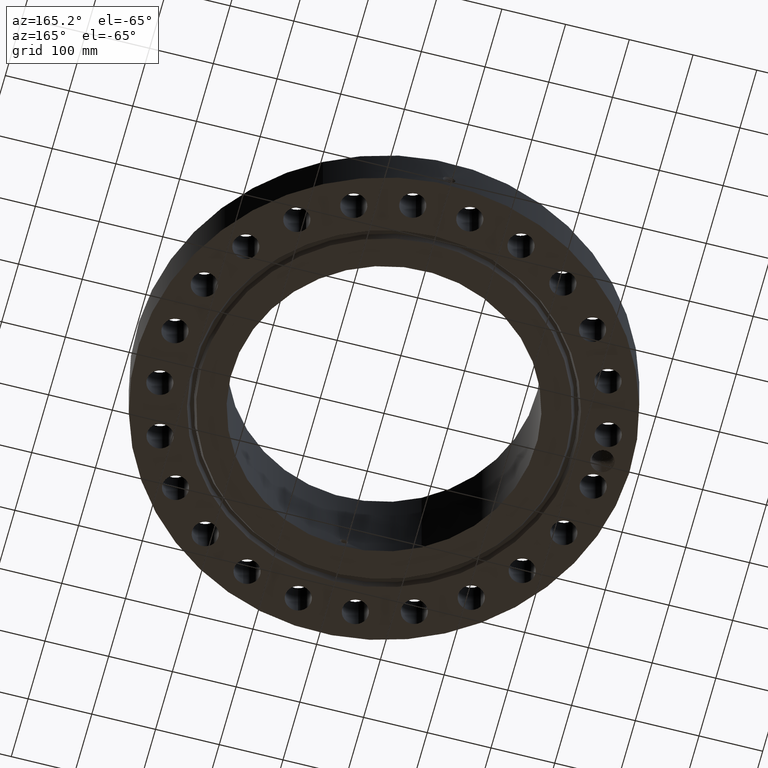
[diagram: clean part render]
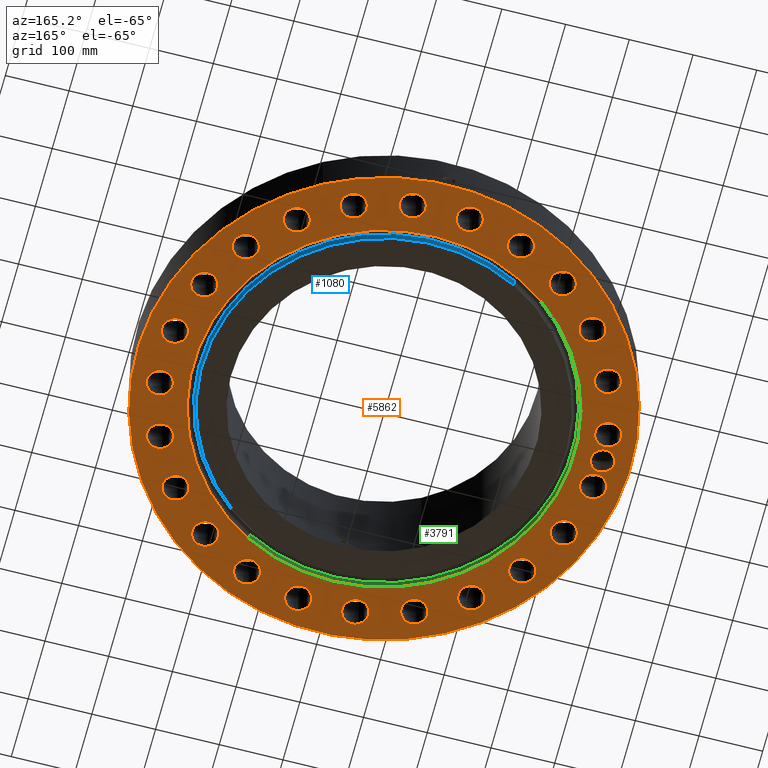
[diagram: same view with three faces highlighted in distinct colors, each labeled with its STEP entity id]
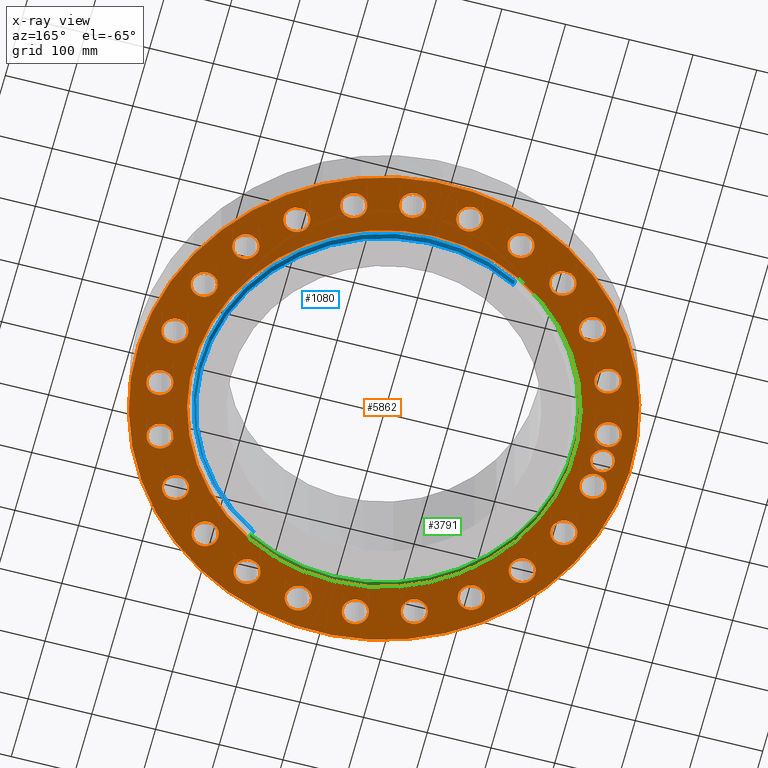
[diagram: x-ray of the same camera — body ghosted, the three highlighted faces saturated]
A machine part, auxiliary view with three faces highlighted in distinct colors.
The next image is the same camera in x-ray (body ghosted, the three faces saturated) — at least one of them is partly hidden behind the body in this view.
Their STEP definitions:

[orange] entity #5862 — the highlighted planar face has unit normal (0, 0, -1).
#598=AXIS2_PLACEMENT_3D('Plane Axis2P3D',#595,#596,#597) ;
#3756=AXIS2_PLACEMENT_3D('Circle Axis2P3D',#3754,#3755,$) ;
#3782=AXIS2_PLACEMENT_3D('Circle Axis2P3D',#3780,#3781,$) ;
#4056=AXIS2_PLACEMENT_3D('Circle Axis2P3D',#4054,#4055,$) ;
#4169=AXIS2_PLACEMENT_3D('Circle Axis2P3D',#4167,#4168,$) ;
#4391=AXIS2_PLACEMENT_3D('Circle Axis2P3D',#4389,#4390,$) ;
#4410=AXIS2_PLACEMENT_3D('Circle Axis2P3D',#4408,#4409,$) ;
#4434=AXIS2_PLACEMENT_3D('Circle Axis2P3D',#4432,#4433,$) ;
#4453=AXIS2_PLACEMENT_3D('Circle Axis2P3D',#4451,#4452,$) ;
#4477=AXIS2_PLACEMENT_3D('Circle Axis2P3D',#4475,#4476,$) ;
#4496=AXIS2_PLACEMENT_3D('Circle Axis2P3D',#4494,#4495,$) ;
#4520=AXIS2_PLACEMENT_3D('Circle Axis2P3D',#4518,#4519,$) ;
#4539=AXIS2_PLACEMENT_3D('Circle Axis2P3D',#4537,#4538,$) ;
#4563=AXIS2_PLACEMENT_3D('Circle Axis2P3D',#4561,#4562,$) ;
#4582=AXIS2_PLACEMENT_3D('Circle Axis2P3D',#4580,#4581,$) ;
#4606=AXIS2_PLACEMENT_3D('Circle Axis2P3D',#4604,#4605,$) ;
#4625=AXIS2_PLACEMENT_3D('Circle Axis2P3D',#4623,#4624,$) ;
#4649=AXIS2_PLACEMENT_3D('Circle Axis2P3D',#4647,#4648,$) ;
#4668=AXIS2_PLACEMENT_3D('Circle Axis2P3D',#4666,#4667,$) ;
#4692=AXIS2_PLACEMENT_3D('Circle Axis2P3D',#4690,#4691,$) ;
#4711=AXIS2_PLACEMENT_3D('Circle Axis2P3D',#4709,#4710,$) ;
#4735=AXIS2_PLACEMENT_3D('Circle Axis2P3D',#4733,#4734,$) ;
#4754=AXIS2_PLACEMENT_3D('Circle Axis2P3D',#4752,#4753,$) ;
#4778=AXIS2_PLACEMENT_3D('Circle Axis2P3D',#4776,#4777,$) ;
#4797=AXIS2_PLACEMENT_3D('Circle Axis2P3D',#4795,#4796,$) ;
#4821=AXIS2_PLACEMENT_3D('Circle Axis2P3D',#4819,#4820,$) ;
#4840=AXIS2_PLACEMENT_3D('Circle Axis2P3D',#4838,#4839,$) ;
#4864=AXIS2_PLACEMENT_3D('Circle Axis2P3D',#4862,#4863,$) ;
#4883=AXIS2_PLACEMENT_3D('Circle Axis2P3D',#4881,#4882,$) ;
#4907=AXIS2_PLACEMENT_3D('Circle Axis2P3D',#4905,#4906,$) ;
#4926=AXIS2_PLACEMENT_3D('Circle Axis2P3D',#4924,#4925,$) ;
#4950=AXIS2_PLACEMENT_3D('Circle Axis2P3D',#4948,#4949,$) ;
#4969=AXIS2_PLACEMENT_3D('Circle Axis2P3D',#4967,#4968,$) ;
#4993=AXIS2_PLACEMENT_3D('Circle Axis2P3D',#4991,#4992,$) ;
#5012=AXIS2_PLACEMENT_3D('Circle Axis2P3D',#5010,#5011,$) ;
#5036=AXIS2_PLACEMENT_3D('Circle Axis2P3D',#5034,#5035,$) ;
#5055=AXIS2_PLACEMENT_3D('Circle Axis2P3D',#5053,#5054,$) ;
#5079=AXIS2_PLACEMENT_3D('Circle Axis2P3D',#5077,#5078,$) ;
#5098=AXIS2_PLACEMENT_3D('Circle Axis2P3D',#5096,#5097,$) ;
#5122=AXIS2_PLACEMENT_3D('Circle Axis2P3D',#5120,#5121,$) ;
#5141=AXIS2_PLACEMENT_3D('Circle Axis2P3D',#5139,#5140,$) ;
#5165=AXIS2_PLACEMENT_3D('Circle Axis2P3D',#5163,#5164,$) ;
#5184=AXIS2_PLACEMENT_3D('Circle Axis2P3D',#5182,#5183,$) ;
#5208=AXIS2_PLACEMENT_3D('Circle Axis2P3D',#5206,#5207,$) ;
#5227=AXIS2_PLACEMENT_3D('Circle Axis2P3D',#5225,#5226,$) ;
#5251=AXIS2_PLACEMENT_3D('Circle Axis2P3D',#5249,#5250,$) ;
#5270=AXIS2_PLACEMENT_3D('Circle Axis2P3D',#5268,#5269,$) ;
#5294=AXIS2_PLACEMENT_3D('Circle Axis2P3D',#5292,#5293,$) ;
#5313=AXIS2_PLACEMENT_3D('Circle Axis2P3D',#5311,#5312,$) ;
#5337=AXIS2_PLACEMENT_3D('Circle Axis2P3D',#5335,#5336,$) ;
#5356=AXIS2_PLACEMENT_3D('Circle Axis2P3D',#5354,#5355,$) ;
#5380=AXIS2_PLACEMENT_3D('Circle Axis2P3D',#5378,#5379,$) ;
#5399=AXIS2_PLACEMENT_3D('Circle Axis2P3D',#5397,#5398,$) ;
#5710=AXIS2_PLACEMENT_3D('Circle Axis2P3D',#5708,#5709,$) ;
#5719=AXIS2_PLACEMENT_3D('Circle Axis2P3D',#5717,#5718,$) ;
#5726=AXIS2_PLACEMENT_3D('Circle Axis2P3D',#5724,#5725,$) ;
#595=CARTESIAN_POINT('Axis2P3D Location',(0.,9.40600000004,0.)) ;
#3754=CARTESIAN_POINT('Axis2P3D Location',(0.,0.,0.)) ;
#3758=CARTESIAN_POINT('Vertex',(-5.64068117447,10.325197632,0.)) ;
#3760=CARTESIAN_POINT('Vertex',(5.64068117447,-10.325197632,-1.95818864186E-015)) ;
#3780=CARTESIAN_POINT('Axis2P3D Location',(0.,0.,0.)) ;
#4054=CARTESIAN_POINT('Axis2P3D Location',(0.,0.,1.67844740731E-015)) ;
#4058=CARTESIAN_POINT('Vertex',(-7.31123946374,-13.3831340689,1.67844740731E-015)) ;
#4060=CARTESIAN_POINT('Vertex',(7.31123946374,13.3831340689,1.67844740731E-015)) ;
#4167=CARTESIAN_POINT('Axis2P3D Location',(0.,0.,1.67844740731E-015)) ;
#4386=CARTESIAN_POINT('Vertex',(14.0953475037,-2.15043828125,0.)) ;
#4389=CARTESIAN_POINT('Axis2P3D Location',(13.3845056286,-1.76210359498,0.)) ;
#4393=CARTESIAN_POINT('Vertex',(12.6736637535,-1.37376890871,0.)) ;
#4408=CARTESIAN_POINT('Axis2P3D Location',(13.3845056286,-1.76210359498,0.)) ;
#4429=CARTESIAN_POINT('Vertex',(11.886261576,-4.6071444189,0.)) ;
#4432=CARTESIAN_POINT('Axis2P3D Location',(12.472373689,-5.16622633695,0.)) ;
#4436=CARTESIAN_POINT('Vertex',(13.0584858019,-5.725308255,0.)) ;
#4451=CARTESIAN_POINT('Axis2P3D Location',(12.472373689,-5.16622633695,0.)) ;
#4472=CARTESIAN_POINT('Vertex',(10.2888303152,-7.5265506506,0.)) ;
#4475=CARTESIAN_POINT('Axis2P3D Location',(10.710270094,-8.21827929165,0.)) ;
#4479=CARTESIAN_POINT('Vertex',(11.1317098728,-8.9100079327,0.)) ;
#4494=CARTESIAN_POINT('Axis2P3D Location',(10.710270094,-8.21827929165,0.)) ;
#4515=CARTESIAN_POINT('Vertex',(7.99023227142,-9.93303489368,0.)) ;
#4518=CARTESIAN_POINT('Axis2P3D Location',(8.21827929165,-10.710270094,0.)) ;
#4522=CARTESIAN_POINT('Vertex',(8.44632631188,-11.4875052943,0.)) ;
#4537=CARTESIAN_POINT('Axis2P3D Location',(8.21827929165,-10.710270094,0.)) ;
#4558=CARTESIAN_POINT('Vertex',(5.14711310286,-11.6625992239,0.)) ;
#4561=CARTESIAN_POINT('Axis2P3D Location',(5.16622633695,-12.472373689,0.)) ;
#4565=CARTESIAN_POINT('Vertex',(5.18533957104,-13.282148154,0.)) ;
#4580=CARTESIAN_POINT('Axis2P3D Location',(5.16622633695,-12.472373689,0.)) ;
#4601=CARTESIAN_POINT('Vertex',(1.95322668235,-12.5973766903,0.)) ;
#4604=CARTESIAN_POINT('Axis2P3D Location',(1.76210359498,-13.3845056286,0.)) ;
#4608=CARTESIAN_POINT('Vertex',(1.57098050761,-14.1716345669,0.)) ;
#4623=CARTESIAN_POINT('Axis2P3D Location',(1.76210359498,-13.3845056286,0.)) ;
#4644=CARTESIAN_POINT('Vertex',(-1.37376890871,-12.6736637535,0.)) ;
#4647=CARTESIAN_POINT('Axis2P3D Location',(-1.76210359498,-13.3845056286,0.)) ;
#4651=CARTESIAN_POINT('Vertex',(-2.15043828125,-14.0953475037,0.)) ;
#4666=CARTESIAN_POINT('Axis2P3D Location',(-1.76210359498,-13.3845056286,0.)) ;
#4687=CARTESIAN_POINT('Vertex',(-4.6071444189,-11.886261576,0.)) ;
#4690=CARTESIAN_POINT('Axis2P3D Location',(-5.16622633695,-12.472373689,-1.1189649382E-015)) ;
#4694=CARTESIAN_POINT('Vertex',(-5.725308255,-13.0584858019,-1.1189649382E-015)) ;
#4709=CARTESIAN_POINT('Axis2P3D Location',(-5.16622633695,-12.472373689,-1.1189649382E-015)) ;
#4730=CARTESIAN_POINT('Vertex',(-7.5265506506,-10.2888303152,0.)) ;
#4733=CARTESIAN_POINT('Axis2P3D Location',(-8.21827929165,-10.710270094,-2.23792987641E-015)) ;
#4737=CARTESIAN_POINT('Vertex',(-8.9100079327,-11.1317098728,-2.23792987641E-015)) ;
#4752=CARTESIAN_POINT('Axis2P3D Location',(-8.21827929165,-10.710270094,-2.23792987641E-015)) ;
#4773=CARTESIAN_POINT('Vertex',(-9.93303489368,-7.99023227142,0.)) ;
#4776=CARTESIAN_POINT('Axis2P3D Location',(-10.710270094,-8.21827929165,0.)) ;
#4780=CARTESIAN_POINT('Vertex',(-11.4875052943,-8.44632631188,0.)) ;
#4795=CARTESIAN_POINT('Axis2P3D Location',(-10.710270094,-8.21827929165,0.)) ;
#4816=CARTESIAN_POINT('Vertex',(-11.6625992239,-5.14711310286,0.)) ;
#4819=CARTESIAN_POINT('Axis2P3D Location',(-12.472373689,-5.16622633695,0.)) ;
#4823=CARTESIAN_POINT('Vertex',(-13.282148154,-5.18533957104,0.)) ;
#4838=CARTESIAN_POINT('Axis2P3D Location',(-12.472373689,-5.16622633695,0.)) ;
#4859=CARTESIAN_POINT('Vertex',(-12.5973766903,-1.95322668235,0.)) ;
#4862=CARTESIAN_POINT('Axis2P3D Location',(-13.3845056286,-1.76210359498,0.)) ;
#4866=CARTESIAN_POINT('Vertex',(-14.1716345669,-1.57098050761,0.)) ;
#4881=CARTESIAN_POINT('Axis2P3D Location',(-13.3845056286,-1.76210359498,0.)) ;
#4902=CARTESIAN_POINT('Vertex',(-12.6736637535,1.37376890871,0.)) ;
#4905=CARTESIAN_POINT('Axis2P3D Location',(-13.3845056286,1.76210359498,0.)) ;
#4909=CARTESIAN_POINT('Vertex',(-14.0953475037,2.15043828125,0.)) ;
#4924=CARTESIAN_POINT('Axis2P3D Location',(-13.3845056286,1.76210359498,0.)) ;
#4945=CARTESIAN_POINT('Vertex',(-11.886261576,4.6071444189,0.)) ;
#4948=CARTESIAN_POINT('Axis2P3D Location',(-12.472373689,5.16622633695,0.)) ;
#4952=CARTESIAN_POINT('Vertex',(-13.0584858019,5.725308255,0.)) ;
#4967=CARTESIAN_POINT('Axis2P3D Location',(-12.472373689,5.16622633695,0.)) ;
#4988=CARTESIAN_POINT('Vertex',(-10.2888303152,7.5265506506,0.)) ;
#4991=CARTESIAN_POINT('Axis2P3D Location',(-10.710270094,8.21827929165,0.)) ;
#4995=CARTESIAN_POINT('Vertex',(-11.1317098728,8.9100079327,0.)) ;
#5010=CARTESIAN_POINT('Axis2P3D Location',(-10.710270094,8.21827929165,0.)) ;
#5031=CARTESIAN_POINT('Vertex',(-7.99023227142,9.93303489368,0.)) ;
#5034=CARTESIAN_POINT('Axis2P3D Location',(-8.21827929165,10.710270094,0.)) ;
#5038=CARTESIAN_POINT('Vertex',(-8.44632631188,11.4875052943,0.)) ;
#5053=CARTESIAN_POINT('Axis2P3D Location',(-8.21827929165,10.710270094,0.)) ;
#5074=CARTESIAN_POINT('Vertex',(-5.14711310286,11.6625992239,0.)) ;
#5077=CARTESIAN_POINT('Axis2P3D Location',(-5.16622633695,12.472373689,0.)) ;
#5081=CARTESIAN_POINT('Vertex',(-5.18533957104,13.282148154,0.)) ;
#5096=CARTESIAN_POINT('Axis2P3D Location',(-5.16622633695,12.472373689,0.)) ;
#5117=CARTESIAN_POINT('Vertex',(-1.95322668235,12.5973766903,0.)) ;
#5120=CARTESIAN_POINT('Axis2P3D Location',(-1.76210359498,13.3845056286,0.)) ;
#5124=CARTESIAN_POINT('Vertex',(-1.57098050761,14.1716345669,0.)) ;
#5139=CARTESIAN_POINT('Axis2P3D Location',(-1.76210359498,13.3845056286,0.)) ;
#5160=CARTESIAN_POINT('Vertex',(1.37376890871,12.6736637535,0.)) ;
#5163=CARTESIAN_POINT('Axis2P3D Location',(1.76210359498,13.3845056286,0.)) ;
#5167=CARTESIAN_POINT('Vertex',(2.15043828125,14.0953475037,0.)) ;
#5182=CARTESIAN_POINT('Axis2P3D Location',(1.76210359498,13.3845056286,0.)) ;
#5203=CARTESIAN_POINT('Vertex',(4.6071444189,11.886261576,0.)) ;
#5206=CARTESIAN_POINT('Axis2P3D Location',(5.16622633695,12.472373689,0.)) ;
#5210=CARTESIAN_POINT('Vertex',(5.725308255,13.0584858019,0.)) ;
#5225=CARTESIAN_POINT('Axis2P3D Location',(5.16622633695,12.472373689,0.)) ;
#5246=CARTESIAN_POINT('Vertex',(7.5265506506,10.2888303152,0.)) ;
#5249=CARTESIAN_POINT('Axis2P3D Location',(8.21827929165,10.710270094,0.)) ;
#5253=CARTESIAN_POINT('Vertex',(8.9100079327,11.1317098728,0.)) ;
#5268=CARTESIAN_POINT('Axis2P3D Location',(8.21827929165,10.710270094,0.)) ;
#5289=CARTESIAN_POINT('Vertex',(9.93303489368,7.99023227142,0.)) ;
#5292=CARTESIAN_POINT('Axis2P3D Location',(10.710270094,8.21827929165,0.)) ;
#5296=CARTESIAN_POINT('Vertex',(11.4875052943,8.44632631188,0.)) ;
#5311=CARTESIAN_POINT('Axis2P3D Location',(10.710270094,8.21827929165,0.)) ;
#5332=CARTESIAN_POINT('Vertex',(11.6625992239,5.14711310286,0.)) ;
#5335=CARTESIAN_POINT('Axis2P3D Location',(12.472373689,5.16622633695,0.)) ;
#5339=CARTESIAN_POINT('Vertex',(13.282148154,5.18533957104,0.)) ;
#5354=CARTESIAN_POINT('Axis2P3D Location',(12.472373689,5.16622633695,0.)) ;
#5375=CARTESIAN_POINT('Vertex',(12.5973766903,1.95322668235,0.)) ;
#5378=CARTESIAN_POINT('Axis2P3D Location',(13.3845056286,1.76210359498,0.)) ;
#5382=CARTESIAN_POINT('Vertex',(14.1716345669,1.57098050761,0.)) ;
#5397=CARTESIAN_POINT('Axis2P3D Location',(13.3845056286,1.76210359498,0.)) ;
#5708=CARTESIAN_POINT('Axis2P3D Location',(-13.5000000001,-5.59482469102E-015,0.)) ;
#5712=CARTESIAN_POINT('Vertex',(-14.1423026771,0.350891551706,0.)) ;
#5714=CARTESIAN_POINT('Vertex',(-13.9946919209,0.539404777018,0.)) ;
#5717=CARTESIAN_POINT('Axis2P3D Location',(-13.5000000001,-5.59482469102E-015,0.)) ;
#5721=CARTESIAN_POINT('Vertex',(-12.857697323,-0.350891551706,0.)) ;
#5724=CARTESIAN_POINT('Axis2P3D Location',(-13.5000000001,-5.59482469102E-015,0.)) ;
#5728=CARTESIAN_POINT('Vertex',(-13.0313287575,0.562160899066,0.)) ;
#5732=CARTESIAN_POINT('Control Point',(-13.5176305827,0.749805742301,0.)) ;
#5733=CARTESIAN_POINT('Control Point',(-13.4614873509,0.749237272822,0.)) ;
#5734=CARTESIAN_POINT('Control Point',(-13.4054600923,0.74341097386,0.)) ;
#5735=CARTESIAN_POINT('Control Point',(-13.3502031906,0.732335780361,0.)) ;
#5736=CARTESIAN_POINT('Control Point',(-13.2475757315,0.70147020082,0.)) ;
#5737=CARTESIAN_POINT('Control Point',(-13.1524552652,0.652965206504,0.)) ;
#5738=CARTESIAN_POINT('Control Point',(-13.1093767781,0.626103065864,0.)) ;
#5739=CARTESIAN_POINT('Control Point',(-13.0688797901,0.595722298228,0.)) ;
#5740=CARTESIAN_POINT('Control Point',(-13.0313287575,0.562160899066,0.)) ;
#5741=CARTESIAN_POINT('Vertex',(-13.5176305827,0.749805742301,-8.74191357973E-018)) ;
#5745=CARTESIAN_POINT('Control Point',(-13.5176305827,0.749805742301,0.)) ;
#5746=CARTESIAN_POINT('Control Point',(-13.5849434874,0.745961655341,0.)) ;
#5747=CARTESIAN_POINT('Control Point',(-13.6516740814,0.734555348833,0.)) ;
#5748=CARTESIAN_POINT('Control Point',(-13.7166930271,0.715676879873,0.)) ;
#5749=CARTESIAN_POINT('Control Point',(-13.8156574662,0.674316121079,0.)) ;
#5750=CARTESIAN_POINT('Control Point',(-13.9050065691,0.616387327484,0.)) ;
#5751=CARTESIAN_POINT('Control Point',(-13.9366738896,0.59269526392,0.)) ;
#5752=CARTESIAN_POINT('Control Point',(-13.9666245253,0.566978722431,0.)) ;
#5753=CARTESIAN_POINT('Control Point',(-13.9946919209,0.539404777018,0.)) ;
#596=DIRECTION('Axis2P3D Direction',(0.,0.,-0.0393700787402)) ;
#597=DIRECTION('Axis2P3D XDirection',(0.0393700787402,0.,0.)) ;
#3755=DIRECTION('Axis2P3D Direction',(0.,0.,-0.0393700787402)) ;
#3781=DIRECTION('Axis2P3D Direction',(0.,0.,-0.0393700787402)) ;
#4055=DIRECTION('Axis2P3D Direction',(0.,0.,-0.0393700787402)) ;
#4168=DIRECTION('Axis2P3D Direction',(0.,0.,-0.0393700787402)) ;
#4390=DIRECTION('Axis2P3D Direction',(0.,-0.,-0.0393700787402)) ;
#4409=DIRECTION('Axis2P3D Direction',(0.,-0.,-0.0393700787402)) ;
#4433=DIRECTION('Axis2P3D Direction',(0.,-0.,-0.0393700787402)) ;
#4452=DIRECTION('Axis2P3D Direction',(0.,-0.,-0.0393700787402)) ;
#4476=DIRECTION('Axis2P3D Direction',(0.,-0.,-0.0393700787402)) ;
#4495=DIRECTION('Axis2P3D Direction',(0.,-0.,-0.0393700787402)) ;
#4519=DIRECTION('Axis2P3D Direction',(0.,-0.,-0.0393700787402)) ;
#4538=DIRECTION('Axis2P3D Direction',(0.,-0.,-0.0393700787402)) ;
#4562=DIRECTION('Axis2P3D Direction',(0.,-0.,-0.0393700787402)) ;
#4581=DIRECTION('Axis2P3D Direction',(0.,-0.,-0.0393700787402)) ;
#4605=DIRECTION('Axis2P3D Direction',(0.,-0.,-0.0393700787402)) ;
#4624=DIRECTION('Axis2P3D Direction',(0.,-0.,-0.0393700787402)) ;
#4648=DIRECTION('Axis2P3D Direction',(0.,-0.,-0.0393700787402)) ;
#4667=DIRECTION('Axis2P3D Direction',(0.,-0.,-0.0393700787402)) ;
#4691=DIRECTION('Axis2P3D Direction',(-0.,0.,-0.0393700787402)) ;
#4710=DIRECTION('Axis2P3D Direction',(-0.,0.,-0.0393700787402)) ;
#4734=DIRECTION('Axis2P3D Direction',(-0.,0.,-0.0393700787402)) ;
#4753=DIRECTION('Axis2P3D Direction',(-0.,0.,-0.0393700787402)) ;
#4777=DIRECTION('Axis2P3D Direction',(-0.,0.,-0.0393700787402)) ;
#4796=DIRECTION('Axis2P3D Direction',(-0.,0.,-0.0393700787402)) ;
#4820=DIRECTION('Axis2P3D Direction',(-0.,0.,-0.0393700787402)) ;
#4839=DIRECTION('Axis2P3D Direction',(-0.,0.,-0.0393700787402)) ;
#4863=DIRECTION('Axis2P3D Direction',(-0.,0.,-0.0393700787402)) ;
#4882=DIRECTION('Axis2P3D Direction',(-0.,0.,-0.0393700787402)) ;
#4906=DIRECTION('Axis2P3D Direction',(-0.,0.,-0.0393700787402)) ;
#4925=DIRECTION('Axis2P3D Direction',(-0.,0.,-0.0393700787402)) ;
#4949=DIRECTION('Axis2P3D Direction',(0.,0.,-0.0393700787402)) ;
#4968=DIRECTION('Axis2P3D Direction',(0.,0.,-0.0393700787402)) ;
#4992=DIRECTION('Axis2P3D Direction',(0.,0.,-0.0393700787402)) ;
#5011=DIRECTION('Axis2P3D Direction',(0.,0.,-0.0393700787402)) ;
#5035=DIRECTION('Axis2P3D Direction',(0.,0.,-0.0393700787402)) ;
#5054=DIRECTION('Axis2P3D Direction',(0.,0.,-0.0393700787402)) ;
#5078=DIRECTION('Axis2P3D Direction',(0.,0.,-0.0393700787402)) ;
#5097=DIRECTION('Axis2P3D Direction',(0.,0.,-0.0393700787402)) ;
#5121=DIRECTION('Axis2P3D Direction',(0.,0.,-0.0393700787402)) ;
#5140=DIRECTION('Axis2P3D Direction',(0.,0.,-0.0393700787402)) ;
#5164=DIRECTION('Axis2P3D Direction',(0.,0.,-0.0393700787402)) ;
#5183=DIRECTION('Axis2P3D Direction',(0.,0.,-0.0393700787402)) ;
#5207=DIRECTION('Axis2P3D Direction',(0.,0.,-0.0393700787402)) ;
#5226=DIRECTION('Axis2P3D Direction',(0.,0.,-0.0393700787402)) ;
#5250=DIRECTION('Axis2P3D Direction',(0.,0.,-0.0393700787402)) ;
#5269=DIRECTION('Axis2P3D Direction',(0.,0.,-0.0393700787402)) ;
#5293=DIRECTION('Axis2P3D Direction',(0.,0.,-0.0393700787402)) ;
#5312=DIRECTION('Axis2P3D Direction',(0.,0.,-0.0393700787402)) ;
#5336=DIRECTION('Axis2P3D Direction',(0.,0.,-0.0393700787402)) ;
#5355=DIRECTION('Axis2P3D Direction',(0.,0.,-0.0393700787402)) ;
#5379=DIRECTION('Axis2P3D Direction',(0.,0.,-0.0393700787402)) ;
#5398=DIRECTION('Axis2P3D Direction',(0.,0.,-0.0393700787402)) ;
#5709=DIRECTION('Axis2P3D Direction',(0.,0.,-0.0393700787402)) ;
#5718=DIRECTION('Axis2P3D Direction',(0.,0.,-0.0393700787402)) ;
#5725=DIRECTION('Axis2P3D Direction',(0.,0.,-0.0393700787402)) ;
#5705=ORIENTED_EDGE('',*,*,#4062,.T.) ;
#5706=ORIENTED_EDGE('',*,*,#4171,.T.) ;
#5756=ORIENTED_EDGE('',*,*,#5716,.F.) ;
#5757=ORIENTED_EDGE('',*,*,#5723,.F.) ;
#5758=ORIENTED_EDGE('',*,*,#5730,.F.) ;
#5759=ORIENTED_EDGE('',*,*,#5743,.F.) ;
#5760=ORIENTED_EDGE('',*,*,#5754,.T.) ;
#5763=ORIENTED_EDGE('',*,*,#4395,.F.) ;
#5764=ORIENTED_EDGE('',*,*,#4412,.F.) ;
#5767=ORIENTED_EDGE('',*,*,#4438,.F.) ;
#5768=ORIENTED_EDGE('',*,*,#4455,.F.) ;
#5771=ORIENTED_EDGE('',*,*,#4481,.F.) ;
#5772=ORIENTED_EDGE('',*,*,#4498,.F.) ;
#5775=ORIENTED_EDGE('',*,*,#4524,.F.) ;
#5776=ORIENTED_EDGE('',*,*,#4541,.F.) ;
#5779=ORIENTED_EDGE('',*,*,#4567,.F.) ;
#5780=ORIENTED_EDGE('',*,*,#4584,.F.) ;
#5783=ORIENTED_EDGE('',*,*,#4610,.F.) ;
#5784=ORIENTED_EDGE('',*,*,#4627,.F.) ;
#5787=ORIENTED_EDGE('',*,*,#4653,.F.) ;
#5788=ORIENTED_EDGE('',*,*,#4670,.F.) ;
#5791=ORIENTED_EDGE('',*,*,#4696,.F.) ;
#5792=ORIENTED_EDGE('',*,*,#4713,.F.) ;
#5795=ORIENTED_EDGE('',*,*,#4739,.F.) ;
#5796=ORIENTED_EDGE('',*,*,#4756,.F.) ;
#5799=ORIENTED_EDGE('',*,*,#4782,.F.) ;
#5800=ORIENTED_EDGE('',*,*,#4799,.F.) ;
#5803=ORIENTED_EDGE('',*,*,#4825,.F.) ;
#5804=ORIENTED_EDGE('',*,*,#4842,.F.) ;
#5807=ORIENTED_EDGE('',*,*,#4868,.F.) ;
#5808=ORIENTED_EDGE('',*,*,#4885,.F.) ;
#5811=ORIENTED_EDGE('',*,*,#4911,.F.) ;
#5812=ORIENTED_EDGE('',*,*,#4928,.F.) ;
#5815=ORIENTED_EDGE('',*,*,#4954,.F.) ;
#5816=ORIENTED_EDGE('',*,*,#4971,.F.) ;
#5819=ORIENTED_EDGE('',*,*,#4997,.F.) ;
#5820=ORIENTED_EDGE('',*,*,#5014,.F.) ;
#5823=ORIENTED_EDGE('',*,*,#5040,.F.) ;
#5824=ORIENTED_EDGE('',*,*,#5057,.F.) ;
#5827=ORIENTED_EDGE('',*,*,#5083,.F.) ;
#5828=ORIENTED_EDGE('',*,*,#5100,.F.) ;
#5831=ORIENTED_EDGE('',*,*,#5126,.F.) ;
#5832=ORIENTED_EDGE('',*,*,#5143,.F.) ;
#5835=ORIENTED_EDGE('',*,*,#5169,.F.) ;
#5836=ORIENTED_EDGE('',*,*,#5186,.F.) ;
#5839=ORIENTED_EDGE('',*,*,#5212,.F.) ;
#5840=ORIENTED_EDGE('',*,*,#5229,.F.) ;
#5843=ORIENTED_EDGE('',*,*,#5255,.F.) ;
#5844=ORIENTED_EDGE('',*,*,#5272,.F.) ;
#5847=ORIENTED_EDGE('',*,*,#5298,.F.) ;
#5848=ORIENTED_EDGE('',*,*,#5315,.F.) ;
#5851=ORIENTED_EDGE('',*,*,#5341,.F.) ;
#5852=ORIENTED_EDGE('',*,*,#5358,.F.) ;
#5855=ORIENTED_EDGE('',*,*,#5384,.F.) ;
#5856=ORIENTED_EDGE('',*,*,#5401,.F.) ;
#5859=ORIENTED_EDGE('',*,*,#3784,.F.) ;
#5860=ORIENTED_EDGE('',*,*,#3762,.F.) ;
#5761=FACE_BOUND('',#5755,.T.) ;
#5765=FACE_BOUND('',#5762,.T.) ;
#5769=FACE_BOUND('',#5766,.T.) ;
#5773=FACE_BOUND('',#5770,.T.) ;
#5777=FACE_BOUND('',#5774,.T.) ;
#5781=FACE_BOUND('',#5778,.T.) ;
#5785=FACE_BOUND('',#5782,.T.) ;
#5789=FACE_BOUND('',#5786,.T.) ;
#5793=FACE_BOUND('',#5790,.T.) ;
#5797=FACE_BOUND('',#5794,.T.) ;
#5801=FACE_BOUND('',#5798,.T.) ;
#5805=FACE_BOUND('',#5802,.T.) ;
#5809=FACE_BOUND('',#5806,.T.) ;
#5813=FACE_BOUND('',#5810,.T.) ;
#5817=FACE_BOUND('',#5814,.T.) ;
#5821=FACE_BOUND('',#5818,.T.) ;
#5825=FACE_BOUND('',#5822,.T.) ;
#5829=FACE_BOUND('',#5826,.T.) ;
#5833=FACE_BOUND('',#5830,.T.) ;
#5837=FACE_BOUND('',#5834,.T.) ;
#5841=FACE_BOUND('',#5838,.T.) ;
#5845=FACE_BOUND('',#5842,.T.) ;
#5849=FACE_BOUND('',#5846,.T.) ;
#5853=FACE_BOUND('',#5850,.T.) ;
#5857=FACE_BOUND('',#5854,.T.) ;
#5861=FACE_BOUND('',#5858,.T.) ;
#5862=ADVANCED_FACE('PartBody',(#5707,#5761,#5765,#5769,#5773,#5777,#5781,#5785,#5789,#5793,#5797,#5801,#5805,#5809,#5813,#5817,#5821,#5825,#5829,#5833,#5837,#5841,#5845,#5849,#5853,#5857,#5861),#599,.T.) ;
#5731=B_SPLINE_CURVE_WITH_KNOTS('',5,(#5732,#5733,#5734,#5735,#5736,#5737,#5738,#5739,#5740),.UNSPECIFIED.,.F.,.U.,(6,3,6),(0.,9.8403408392,18.763660013),.UNSPECIFIED.) ;
#5744=B_SPLINE_CURVE_WITH_KNOTS('',5,(#5745,#5746,#5747,#5748,#5749,#5750,#5751,#5752,#5753),.UNSPECIFIED.,.F.,.U.,(6,3,6),(0.,11.8167081259,18.8024030829),.UNSPECIFIED.) ;
#3757=CIRCLE('generated circle',#3756,11.7655) ;
#3783=CIRCLE('generated circle',#3782,11.7655) ;
#4057=CIRCLE('generated circle',#4056,15.2500000001) ;
#4170=CIRCLE('generated circle',#4169,15.2500000001) ;
#4392=CIRCLE('generated circle',#4391,0.810000000003) ;
#4411=CIRCLE('generated circle',#4410,0.810000000003) ;
#4435=CIRCLE('generated circle',#4434,0.810000000003) ;
#4454=CIRCLE('generated circle',#4453,0.810000000003) ;
#4478=CIRCLE('generated circle',#4477,0.810000000003) ;
#4497=CIRCLE('generated circle',#4496,0.810000000003) ;
#4521=CIRCLE('generated circle',#4520,0.810000000003) ;
#4540=CIRCLE('generated circle',#4539,0.810000000003) ;
#4564=CIRCLE('generated circle',#4563,0.810000000003) ;
#4583=CIRCLE('generated circle',#4582,0.810000000003) ;
#4607=CIRCLE('generated circle',#4606,0.810000000003) ;
#4626=CIRCLE('generated circle',#4625,0.810000000003) ;
#4650=CIRCLE('generated circle',#4649,0.810000000003) ;
#4669=CIRCLE('generated circle',#4668,0.810000000003) ;
#4693=CIRCLE('generated circle',#4692,0.810000000003) ;
#4712=CIRCLE('generated circle',#4711,0.810000000003) ;
#4736=CIRCLE('generated circle',#4735,0.810000000003) ;
#4755=CIRCLE('generated circle',#4754,0.810000000003) ;
#4779=CIRCLE('generated circle',#4778,0.810000000003) ;
#4798=CIRCLE('generated circle',#4797,0.810000000003) ;
#4822=CIRCLE('generated circle',#4821,0.810000000003) ;
#4841=CIRCLE('generated circle',#4840,0.810000000003) ;
#4865=CIRCLE('generated circle',#4864,0.810000000003) ;
#4884=CIRCLE('generated circle',#4883,0.810000000003) ;
#4908=CIRCLE('generated circle',#4907,0.810000000003) ;
#4927=CIRCLE('generated circle',#4926,0.810000000003) ;
#4951=CIRCLE('generated circle',#4950,0.810000000003) ;
#4970=CIRCLE('generated circle',#4969,0.810000000003) ;
#4994=CIRCLE('generated circle',#4993,0.810000000003) ;
#5013=CIRCLE('generated circle',#5012,0.810000000003) ;
#5037=CIRCLE('generated circle',#5036,0.810000000003) ;
#5056=CIRCLE('generated circle',#5055,0.810000000003) ;
#5080=CIRCLE('generated circle',#5079,0.810000000003) ;
#5099=CIRCLE('generated circle',#5098,0.810000000003) ;
#5123=CIRCLE('generated circle',#5122,0.810000000003) ;
#5142=CIRCLE('generated circle',#5141,0.810000000003) ;
#5166=CIRCLE('generated circle',#5165,0.810000000003) ;
#5185=CIRCLE('generated circle',#5184,0.810000000003) ;
#5209=CIRCLE('generated circle',#5208,0.810000000003) ;
#5228=CIRCLE('generated circle',#5227,0.810000000003) ;
#5252=CIRCLE('generated circle',#5251,0.810000000003) ;
#5271=CIRCLE('generated circle',#5270,0.810000000003) ;
#5295=CIRCLE('generated circle',#5294,0.810000000003) ;
#5314=CIRCLE('generated circle',#5313,0.810000000003) ;
#5338=CIRCLE('generated circle',#5337,0.810000000003) ;
#5357=CIRCLE('generated circle',#5356,0.810000000003) ;
#5381=CIRCLE('generated circle',#5380,0.810000000003) ;
#5400=CIRCLE('generated circle',#5399,0.810000000003) ;
#5711=CIRCLE('generated circle',#5710,0.731900000003) ;
#5720=CIRCLE('generated circle',#5719,0.731900000003) ;
#5727=CIRCLE('generated circle',#5726,0.731900000003) ;
#3762=EDGE_CURVE('',#3759,#3761,#3757,.T.) ;
#3784=EDGE_CURVE('',#3761,#3759,#3783,.T.) ;
#4062=EDGE_CURVE('',#4059,#4061,#4057,.T.) ;
#4171=EDGE_CURVE('',#4061,#4059,#4170,.T.) ;
#4395=EDGE_CURVE('',#4387,#4394,#4392,.T.) ;
#4412=EDGE_CURVE('',#4394,#4387,#4411,.T.) ;
#4438=EDGE_CURVE('',#4430,#4437,#4435,.T.) ;
#4455=EDGE_CURVE('',#4437,#4430,#4454,.T.) ;
#4481=EDGE_CURVE('',#4473,#4480,#4478,.T.) ;
#4498=EDGE_CURVE('',#4480,#4473,#4497,.T.) ;
#4524=EDGE_CURVE('',#4516,#4523,#4521,.T.) ;
#4541=EDGE_CURVE('',#4523,#4516,#4540,.T.) ;
#4567=EDGE_CURVE('',#4559,#4566,#4564,.T.) ;
#4584=EDGE_CURVE('',#4566,#4559,#4583,.T.) ;
#4610=EDGE_CURVE('',#4602,#4609,#4607,.T.) ;
#4627=EDGE_CURVE('',#4609,#4602,#4626,.T.) ;
#4653=EDGE_CURVE('',#4645,#4652,#4650,.T.) ;
#4670=EDGE_CURVE('',#4652,#4645,#4669,.T.) ;
#4696=EDGE_CURVE('',#4688,#4695,#4693,.T.) ;
#4713=EDGE_CURVE('',#4695,#4688,#4712,.T.) ;
#4739=EDGE_CURVE('',#4731,#4738,#4736,.T.) ;
#4756=EDGE_CURVE('',#4738,#4731,#4755,.T.) ;
#4782=EDGE_CURVE('',#4774,#4781,#4779,.T.) ;
#4799=EDGE_CURVE('',#4781,#4774,#4798,.T.) ;
#4825=EDGE_CURVE('',#4817,#4824,#4822,.T.) ;
#4842=EDGE_CURVE('',#4824,#4817,#4841,.T.) ;
#4868=EDGE_CURVE('',#4860,#4867,#4865,.T.) ;
#4885=EDGE_CURVE('',#4867,#4860,#4884,.T.) ;
#4911=EDGE_CURVE('',#4903,#4910,#4908,.T.) ;
#4928=EDGE_CURVE('',#4910,#4903,#4927,.T.) ;
#4954=EDGE_CURVE('',#4946,#4953,#4951,.T.) ;
#4971=EDGE_CURVE('',#4953,#4946,#4970,.T.) ;
#4997=EDGE_CURVE('',#4989,#4996,#4994,.T.) ;
#5014=EDGE_CURVE('',#4996,#4989,#5013,.T.) ;
#5040=EDGE_CURVE('',#5032,#5039,#5037,.T.) ;
#5057=EDGE_CURVE('',#5039,#5032,#5056,.T.) ;
#5083=EDGE_CURVE('',#5075,#5082,#5080,.T.) ;
#5100=EDGE_CURVE('',#5082,#5075,#5099,.T.) ;
#5126=EDGE_CURVE('',#5118,#5125,#5123,.T.) ;
#5143=EDGE_CURVE('',#5125,#5118,#5142,.T.) ;
#5169=EDGE_CURVE('',#5161,#5168,#5166,.T.) ;
#5186=EDGE_CURVE('',#5168,#5161,#5185,.T.) ;
#5212=EDGE_CURVE('',#5204,#5211,#5209,.T.) ;
#5229=EDGE_CURVE('',#5211,#5204,#5228,.T.) ;
#5255=EDGE_CURVE('',#5247,#5254,#5252,.T.) ;
#5272=EDGE_CURVE('',#5254,#5247,#5271,.T.) ;
#5298=EDGE_CURVE('',#5290,#5297,#5295,.T.) ;
#5315=EDGE_CURVE('',#5297,#5290,#5314,.T.) ;
#5341=EDGE_CURVE('',#5333,#5340,#5338,.T.) ;
#5358=EDGE_CURVE('',#5340,#5333,#5357,.T.) ;
#5384=EDGE_CURVE('',#5376,#5383,#5381,.T.) ;
#5401=EDGE_CURVE('',#5383,#5376,#5400,.T.) ;
#5716=EDGE_CURVE('',#5713,#5715,#5711,.T.) ;
#5723=EDGE_CURVE('',#5722,#5713,#5720,.T.) ;
#5730=EDGE_CURVE('',#5729,#5722,#5727,.T.) ;
#5743=EDGE_CURVE('',#5742,#5729,#5731,.T.) ;
#5754=EDGE_CURVE('',#5742,#5715,#5744,.T.) ;
#5704=EDGE_LOOP('',(#5705,#5706)) ;
#5755=EDGE_LOOP('',(#5756,#5757,#5758,#5759,#5760)) ;
#5762=EDGE_LOOP('',(#5763,#5764)) ;
#5766=EDGE_LOOP('',(#5767,#5768)) ;
#5770=EDGE_LOOP('',(#5771,#5772)) ;
#5774=EDGE_LOOP('',(#5775,#5776)) ;
#5778=EDGE_LOOP('',(#5779,#5780)) ;
#5782=EDGE_LOOP('',(#5783,#5784)) ;
#5786=EDGE_LOOP('',(#5787,#5788)) ;
#5790=EDGE_LOOP('',(#5791,#5792)) ;
#5794=EDGE_LOOP('',(#5795,#5796)) ;
#5798=EDGE_LOOP('',(#5799,#5800)) ;
#5802=EDGE_LOOP('',(#5803,#5804)) ;
#5806=EDGE_LOOP('',(#5807,#5808)) ;
#5810=EDGE_LOOP('',(#5811,#5812)) ;
#5814=EDGE_LOOP('',(#5815,#5816)) ;
#5818=EDGE_LOOP('',(#5819,#5820)) ;
#5822=EDGE_LOOP('',(#5823,#5824)) ;
#5826=EDGE_LOOP('',(#5827,#5828)) ;
#5830=EDGE_LOOP('',(#5831,#5832)) ;
#5834=EDGE_LOOP('',(#5835,#5836)) ;
#5838=EDGE_LOOP('',(#5839,#5840)) ;
#5842=EDGE_LOOP('',(#5843,#5844)) ;
#5846=EDGE_LOOP('',(#5847,#5848)) ;
#5850=EDGE_LOOP('',(#5851,#5852)) ;
#5854=EDGE_LOOP('',(#5855,#5856)) ;
#5858=EDGE_LOOP('',(#5859,#5860)) ;
#5707=FACE_OUTER_BOUND('',#5704,.T.) ;
#599=PLANE('',#598) ;
#3759=VERTEX_POINT('',#3758) ;
#3761=VERTEX_POINT('',#3760) ;
#4059=VERTEX_POINT('',#4058) ;
#4061=VERTEX_POINT('',#4060) ;
#4387=VERTEX_POINT('',#4386) ;
#4394=VERTEX_POINT('',#4393) ;
#4430=VERTEX_POINT('',#4429) ;
#4437=VERTEX_POINT('',#4436) ;
#4473=VERTEX_POINT('',#4472) ;
#4480=VERTEX_POINT('',#4479) ;
#4516=VERTEX_POINT('',#4515) ;
#4523=VERTEX_POINT('',#4522) ;
#4559=VERTEX_POINT('',#4558) ;
#4566=VERTEX_POINT('',#4565) ;
#4602=VERTEX_POINT('',#4601) ;
#4609=VERTEX_POINT('',#4608) ;
#4645=VERTEX_POINT('',#4644) ;
#4652=VERTEX_POINT('',#4651) ;
#4688=VERTEX_POINT('',#4687) ;
#4695=VERTEX_POINT('',#4694) ;
#4731=VERTEX_POINT('',#4730) ;
#4738=VERTEX_POINT('',#4737) ;
#4774=VERTEX_POINT('',#4773) ;
#4781=VERTEX_POINT('',#4780) ;
#4817=VERTEX_POINT('',#4816) ;
#4824=VERTEX_POINT('',#4823) ;
#4860=VERTEX_POINT('',#4859) ;
#4867=VERTEX_POINT('',#4866) ;
#4903=VERTEX_POINT('',#4902) ;
#4910=VERTEX_POINT('',#4909) ;
#4946=VERTEX_POINT('',#4945) ;
#4953=VERTEX_POINT('',#4952) ;
#4989=VERTEX_POINT('',#4988) ;
#4996=VERTEX_POINT('',#4995) ;
#5032=VERTEX_POINT('',#5031) ;
#5039=VERTEX_POINT('',#5038) ;
#5075=VERTEX_POINT('',#5074) ;
#5082=VERTEX_POINT('',#5081) ;
#5118=VERTEX_POINT('',#5117) ;
#5125=VERTEX_POINT('',#5124) ;
#5161=VERTEX_POINT('',#5160) ;
#5168=VERTEX_POINT('',#5167) ;
#5204=VERTEX_POINT('',#5203) ;
#5211=VERTEX_POINT('',#5210) ;
#5247=VERTEX_POINT('',#5246) ;
#5254=VERTEX_POINT('',#5253) ;
#5290=VERTEX_POINT('',#5289) ;
#5297=VERTEX_POINT('',#5296) ;
#5333=VERTEX_POINT('',#5332) ;
#5340=VERTEX_POINT('',#5339) ;
#5376=VERTEX_POINT('',#5375) ;
#5383=VERTEX_POINT('',#5382) ;
#5713=VERTEX_POINT('',#5712) ;
#5715=VERTEX_POINT('',#5714) ;
#5722=VERTEX_POINT('',#5721) ;
#5729=VERTEX_POINT('',#5728) ;
#5742=VERTEX_POINT('',#5741) ;

[blue] entity #1080 — the highlighted conical surface has half-angle 23 deg.
#602=AXIS2_PLACEMENT_3D('Circle Axis2P3D',#600,#601,$) ;
#1053=AXIS2_PLACEMENT_3D('Cone Axis2P3D',#1050,#1051,#1052) ;
#1064=AXIS2_PLACEMENT_3D('Circle Axis2P3D',#1062,#1063,$) ;
#600=CARTESIAN_POINT('Axis2P3D Location',(1.1189649382E-015,-1.1189649382E-015,0.)) ;
#604=CARTESIAN_POINT('Vertex',(-5.38610621347,9.8592012916,3.40934629609E-016)) ;
#606=CARTESIAN_POINT('Vertex',(5.38610621347,-9.8592012916,0.)) ;
#1050=CARTESIAN_POINT('Axis2P3D Location',(0.,0.,-0.0600000000002)) ;
#1055=CARTESIAN_POINT('Line Origine',(-5.4205435653,9.92223844129,0.169221933855)) ;
#1059=CARTESIAN_POINT('Vertex',(-5.45498091713,9.98527559098,0.338443867711)) ;
#1062=CARTESIAN_POINT('Axis2P3D Location',(0.,0.,0.338443867711)) ;
#1066=CARTESIAN_POINT('Vertex',(5.45498091713,-9.98527559098,0.338443867711)) ;
#1069=CARTESIAN_POINT('Line Origine',(5.4205435653,-9.92223844129,0.169221933855)) ;
#601=DIRECTION('Axis2P3D Direction',(0.,0.,-0.0393700787402)) ;
#1051=DIRECTION('Axis2P3D Direction',(0.,0.,0.0393700787402)) ;
#1052=DIRECTION('Axis2P3D XDirection',(-0.0188750212049,0.0345504945626,0.)) ;
#1056=DIRECTION('Vector Direction',(-0.00737505833565,0.0134999537303,0.0362403485611)) ;
#1063=DIRECTION('Axis2P3D Direction',(0.,0.,0.0393700787402)) ;
#1070=DIRECTION('Vector Direction',(0.00737505833565,-0.0134999537303,0.0362403485611)) ;
#1057=VECTOR('Line Direction',#1056,0.0393700787402) ;
#1071=VECTOR('Line Direction',#1070,0.0393700787402) ;
#1075=ORIENTED_EDGE('',*,*,#1061,.F.) ;
#1076=ORIENTED_EDGE('',*,*,#1068,.F.) ;
#1077=ORIENTED_EDGE('',*,*,#1073,.T.) ;
#1078=ORIENTED_EDGE('',*,*,#608,.F.) ;
#1080=ADVANCED_FACE('PartBody',(#1079),#1054,.T.) ;
#603=CIRCLE('generated circle',#602,11.2345) ;
#1065=CIRCLE('generated circle',#1064,11.3781608986) ;
#1054=CONICAL_SURFACE('Cone',#1053,11.2090315111,0.401425727959) ;
#608=EDGE_CURVE('',#605,#607,#603,.T.) ;
#1061=EDGE_CURVE('',#1060,#605,#1058,.F.) ;
#1068=EDGE_CURVE('',#1067,#1060,#1065,.T.) ;
#1073=EDGE_CURVE('',#1067,#607,#1072,.F.) ;
#1074=EDGE_LOOP('',(#1075,#1076,#1077,#1078)) ;
#1079=FACE_OUTER_BOUND('',#1074,.T.) ;
#1058=LINE('Line',#1055,#1057) ;
#1072=LINE('Line',#1069,#1071) ;
#605=VERTEX_POINT('',#604) ;
#607=VERTEX_POINT('',#606) ;
#1060=VERTEX_POINT('',#1059) ;
#1067=VERTEX_POINT('',#1066) ;

[green] entity #3791 — the highlighted conical surface has half-angle 23 deg.
#2635=AXIS2_PLACEMENT_3D('Circle Axis2P3D',#2633,#2634,$) ;
#3752=AXIS2_PLACEMENT_3D('Cone Axis2P3D',#3749,#3750,#3751) ;
#3782=AXIS2_PLACEMENT_3D('Circle Axis2P3D',#3780,#3781,$) ;
#2611=CARTESIAN_POINT('Vertex',(5.57180647081,-10.1991233326,0.338443867711)) ;
#2613=CARTESIAN_POINT('Vertex',(-5.57180647081,10.1991233326,0.338443867711)) ;
#2633=CARTESIAN_POINT('Axis2P3D Location',(0.,0.,0.338443867711)) ;
#3749=CARTESIAN_POINT('Axis2P3D Location',(0.,0.,0.338443867711)) ;
#3758=CARTESIAN_POINT('Vertex',(-5.64068117447,10.325197632,0.)) ;
#3760=CARTESIAN_POINT('Vertex',(5.64068117447,-10.325197632,-1.95818864186E-015)) ;
#3763=CARTESIAN_POINT('Line Origine',(5.60624382264,-10.2621604823,0.169221933855)) ;
#3768=CARTESIAN_POINT('Line Origine',(-5.60624382264,10.2621604823,0.169221933855)) ;
#3780=CARTESIAN_POINT('Axis2P3D Location',(0.,0.,0.)) ;
#2634=DIRECTION('Axis2P3D Direction',(0.,0.,0.0393700787402)) ;
#3750=DIRECTION('Axis2P3D Direction',(-0.,-0.,-0.0393700787402)) ;
#3751=DIRECTION('Axis2P3D XDirection',(0.0188750212049,-0.0345504945626,0.)) ;
#3764=DIRECTION('Vector Direction',(0.00737505833565,-0.0134999537303,-0.0362403485611)) ;
#3769=DIRECTION('Vector Direction',(-0.00737505833565,0.0134999537303,-0.0362403485611)) ;
#3781=DIRECTION('Axis2P3D Direction',(0.,0.,-0.0393700787402)) ;
#3765=VECTOR('Line Direction',#3764,0.0393700787402) ;
#3770=VECTOR('Line Direction',#3769,0.0393700787402) ;
#3786=ORIENTED_EDGE('',*,*,#3784,.T.) ;
#3787=ORIENTED_EDGE('',*,*,#3772,.T.) ;
#3788=ORIENTED_EDGE('',*,*,#2637,.T.) ;
#3789=ORIENTED_EDGE('',*,*,#3767,.F.) ;
#3791=ADVANCED_FACE('PartBody',(#3790),#3753,.F.) ;
#2636=CIRCLE('generated circle',#2635,11.6218391015) ;
#3783=CIRCLE('generated circle',#3782,11.7655) ;
#3753=CONICAL_SURFACE('Cone',#3752,11.6218391015,0.401425727959) ;
#2637=EDGE_CURVE('',#2614,#2612,#2636,.T.) ;
#3767=EDGE_CURVE('',#3761,#2612,#3766,.F.) ;
#3772=EDGE_CURVE('',#3759,#2614,#3771,.F.) ;
#3784=EDGE_CURVE('',#3761,#3759,#3783,.T.) ;
#3785=EDGE_LOOP('',(#3786,#3787,#3788,#3789)) ;
#3790=FACE_OUTER_BOUND('',#3785,.T.) ;
#3766=LINE('Line',#3763,#3765) ;
#3771=LINE('Line',#3768,#3770) ;
#2612=VERTEX_POINT('',#2611) ;
#2614=VERTEX_POINT('',#2613) ;
#3759=VERTEX_POINT('',#3758) ;
#3761=VERTEX_POINT('',#3760) ;